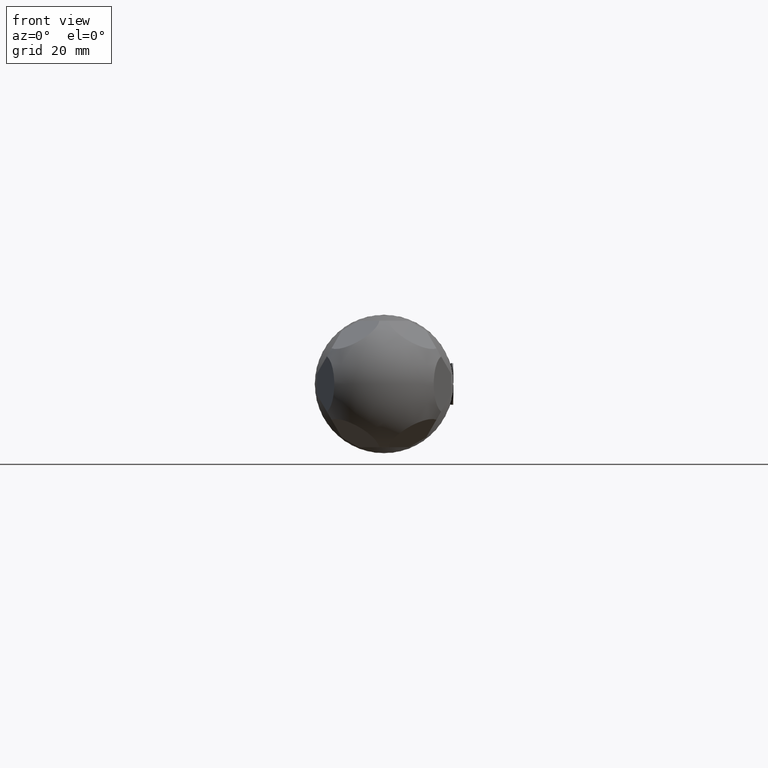
[diagram: clean part render]
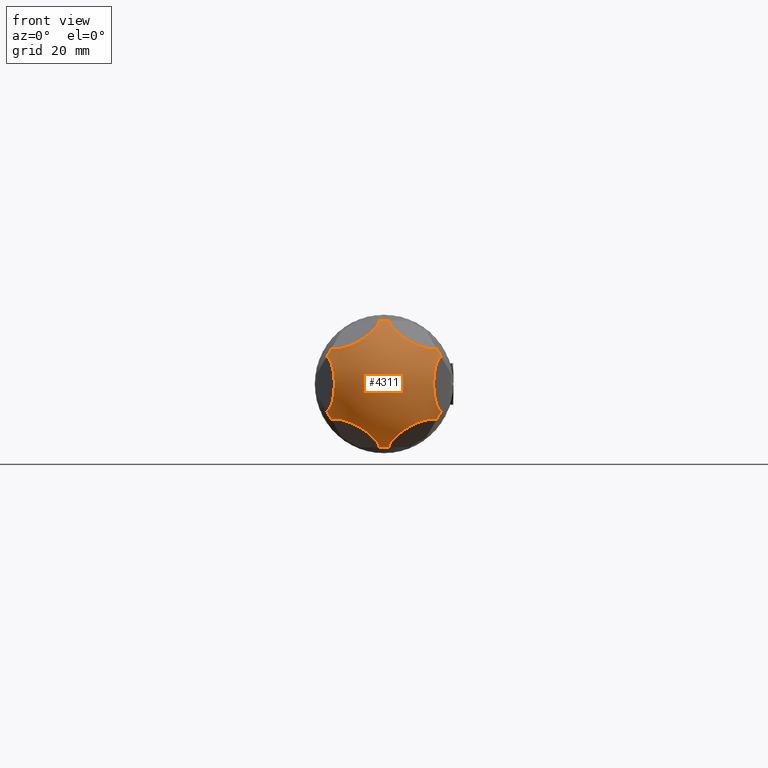
[diagram: same view with one face highlighted and labeled with its STEP entity id]
A machine part, front view. The second image highlights one B-rep face of the part: STEP entity #4311.
In plain terms, the highlighted spherical surface has radius 12 mm.
Its self-contained STEP definition (entity closure, byte-faithful):
#37 = DIRECTION ( 'NONE',  ( -0.000000000000000000, 0.000000000000000000, 1.000000000000000000 ) ) ;
#129 = EDGE_CURVE ( 'NONE', #2714, #7764, #12880, .T. ) ;
#168 = CIRCLE ( 'NONE', #6032, 4.908920451586054945 ) ;
#438 = DIRECTION ( 'NONE',  ( -0.4698463103929521045, -0.3420201433256697121, -0.8137976813493744688 ) ) ;
#469 = DIRECTION ( 'NONE',  ( 0.8660254037844345998, 5.854827030937196993E-32, 0.5000000000000072164 ) ) ;
#605 = CIRCLE ( 'NONE', #606, 4.908920451586069156 ) ;
#606 = AXIS2_PLACEMENT_3D ( 'NONE', #1268, #3320, #10364 ) ;
#837 = DIRECTION ( 'NONE',  ( 0.8660254037844361541, -1.413527469500000806E-15, 0.5000000000000044409 ) ) ;
#855 = CARTESIAN_POINT ( 'NONE',  ( -1.160987972426142227E-13, 48.00000000000000000, 10.95000000000000639 ) ) ;
#873 = EDGE_CURVE ( 'NONE', #8479, #7764, #11291, .T. ) ;
#1018 = VERTEX_POINT ( 'NONE', #2615 ) ;
#1079 = DIRECTION ( 'NONE',  ( -0.8660254037844417052, -0.000000000000000000, 0.4999999999999948930 ) ) ;
#1268 = CARTESIAN_POINT ( 'NONE',  ( -5.144817098802763944, 51.74512056941608051, -8.911084610775686699 ) ) ;
#1427 = DIRECTION ( 'NONE',  ( -0.8660254037844331565, 1.413527469499994692E-15, -0.5000000000000093259 ) ) ;
#1460 = DIRECTION ( 'NONE',  ( -0.4698463103929634843, -0.3420201433256697121, 0.8137976813493679185 ) ) ;
#1824 = CARTESIAN_POINT ( 'NONE',  ( 9.482978171439642168, 48.00000000000000000, -5.474999999999963229 ) ) ;
#1851 = DIRECTION ( 'NONE',  ( 0.9396926207859082059, -0.3420201433256697676, -0.000000000000000000 ) ) ;
#1891 = CARTESIAN_POINT ( 'NONE',  ( -5.144817098802890953, 51.74512056941608762, 8.911084610775620973 ) ) ;
#1899 = ORIENTED_EDGE ( 'NONE', *, *, #10801, .F. ) ;
#2050 = CIRCLE ( 'NONE', #12509, 4.908920451586070044 ) ;
#2053 = CARTESIAN_POINT ( 'NONE',  ( -9.482978171439521375, 48.00000000000000000, -5.475000000000162181 ) ) ;
#2216 = EDGE_LOOP ( 'NONE', ( #3951, #9920, #1899, #11647, #7811, #5428, #3180, #3108, #6496, #3953, #8324, #11458 ) ) ;
#2615 = CARTESIAN_POINT ( 'NONE',  ( -0.8158296189273389620, 52.84065305851193273, 10.94999999999999751 ) ) ;
#2714 = VERTEX_POINT ( 'NONE', #12882 ) ;
#2811 = CARTESIAN_POINT ( 'NONE',  ( -9.890892980903240428, 52.84065305851193273, 4.768470824849190493 ) ) ;
#2824 = DIRECTION ( 'NONE',  ( 0.4999999999999949485, 0.000000000000000000, 0.8660254037844415942 ) ) ;
#2825 = AXIS2_PLACEMENT_3D ( 'NONE', #5576, #469, #12710 ) ;
#3108 = ORIENTED_EDGE ( 'NONE', *, *, #12195, .T. ) ;
#3176 = CARTESIAN_POINT ( 'NONE',  ( -9.482978171439642168, 48.00000000000000000, 5.474999999999930367 ) ) ;
#3180 = ORIENTED_EDGE ( 'NONE', *, *, #3547, .F. ) ;
#3320 = DIRECTION ( 'NONE',  ( 0.4698463103929465534, -0.3420201433256697676, 0.8137976813493779105 ) ) ;
#3385 = AXIS2_PLACEMENT_3D ( 'NONE', #855, #12047, #10088 ) ;
#3405 = AXIS2_PLACEMENT_3D ( 'NONE', #3176, #1079, #12312 ) ;
#3547 = EDGE_CURVE ( 'NONE', #8722, #9438, #13161, .T. ) ;
#3749 = EDGE_CURVE ( 'NONE', #3990, #1018, #10746, .T. ) ;
#3951 = ORIENTED_EDGE ( 'NONE', *, *, #129, .F. ) ;
#3953 = ORIENTED_EDGE ( 'NONE', *, *, #3749, .T. ) ;
#3990 = VERTEX_POINT ( 'NONE', #5306 ) ;
#4311 = ADVANCED_FACE ( 'NONE', ( #10160 ), #6341, .T. ) ;
#4579 = EDGE_CURVE ( 'NONE', #10479, #10362, #2050, .T. ) ;
#4730 = AXIS2_PLACEMENT_3D ( 'NONE', #7911, #37, #7245 ) ;
#4789 = CARTESIAN_POINT ( 'NONE',  ( 0.8158296189273966936, 52.84065305851194694, -10.94999999999998685 ) ) ;
#4866 = CIRCLE ( 'NONE', #6566, 4.908920451586067379 ) ;
#4899 = DIRECTION ( 'NONE',  ( 0.8660254037844417052, -0.000000000000000000, -0.4999999999999948930 ) ) ;
#4911 = CARTESIAN_POINT ( 'NONE',  ( -0.8158296189271683208, 52.84065305851191852, -10.95000000000001350 ) ) ;
#5077 = CARTESIAN_POINT ( 'NONE',  ( -9.890892980903251086, 52.84065305851190431, -4.768470824849226908 ) ) ;
#5163 = CARTESIAN_POINT ( 'NONE',  ( 9.075063361976036802, 52.84065305851193983, -6.181529175150703104 ) ) ;
#5306 = CARTESIAN_POINT ( 'NONE',  ( -9.075063361975994169, 52.84065305851191852, 6.181529175150755506 ) ) ;
#5428 = ORIENTED_EDGE ( 'NONE', *, *, #7001, .T. ) ;
#5461 = EDGE_CURVE ( 'NONE', #3990, #8491, #11732, .T. ) ;
#5525 = EDGE_CURVE ( 'NONE', #6542, #10362, #5821, .T. ) ;
#5576 = CARTESIAN_POINT ( 'NONE',  ( 9.482978171439562232, 48.00000000000000000, 5.475000000000063594 ) ) ;
#5593 = CARTESIAN_POINT ( 'NONE',  ( 9.890892980903240428, 52.84065305851193273, -4.768470824849223355 ) ) ;
#5821 = CIRCLE ( 'NONE', #12297, 4.908920451586066491 ) ;
#5867 = DIRECTION ( 'NONE',  ( -0.3420201433256695456, 0.9396926207859080948, -3.552713678800500140E-15 ) ) ;
#5932 = EDGE_CURVE ( 'NONE', #2714, #6313, #4866, .T. ) ;
#5958 = CARTESIAN_POINT ( 'NONE',  ( -10.28963419760569487, 51.74512056941608051, 1.434817808568490711E-29 ) ) ;
#6032 = AXIS2_PLACEMENT_3D ( 'NONE', #1824, #4899, #2824 ) ;
#6313 = VERTEX_POINT ( 'NONE', #5593 ) ;
#6341 = SPHERICAL_SURFACE ( 'NONE', #4730, 11.99999999999999822 ) ;
#6487 = CARTESIAN_POINT ( 'NONE',  ( 5.144817098802826116, 51.74512056941608051, 8.911084610775651171 ) ) ;
#6496 = ORIENTED_EDGE ( 'NONE', *, *, #5461, .F. ) ;
#6542 = VERTEX_POINT ( 'NONE', #4911 ) ;
#6566 = AXIS2_PLACEMENT_3D ( 'NONE', #10960, #11002, #5867 ) ;
#7001 = EDGE_CURVE ( 'NONE', #6542, #9438, #605, .T. ) ;
#7245 = DIRECTION ( 'NONE',  ( 1.000000000000000000, 0.000000000000000000, 0.000000000000000000 ) ) ;
#7764 = VERTEX_POINT ( 'NONE', #8489 ) ;
#7811 = ORIENTED_EDGE ( 'NONE', *, *, #5525, .F. ) ;
#7911 = CARTESIAN_POINT ( 'NONE',  ( -3.250081887472109906E-45, 48.00000000000000000, 9.629649721936179265E-32 ) ) ;
#8219 = AXIS2_PLACEMENT_3D ( 'NONE', #6487, #438, #8533 ) ;
#8249 = CARTESIAN_POINT ( 'NONE',  ( 1.932953797023628997E-13, 48.00000000000000000, -10.95000000000000107 ) ) ;
#8324 = ORIENTED_EDGE ( 'NONE', *, *, #9211, .F. ) ;
#8479 = VERTEX_POINT ( 'NONE', #9901 ) ;
#8489 = CARTESIAN_POINT ( 'NONE',  ( 9.075063361975949761, 52.84065305851193983, 6.181529175150800803 ) ) ;
#8491 = VERTEX_POINT ( 'NONE', #2811 ) ;
#8533 = DIRECTION ( 'NONE',  ( 0.8660254037844394848, 1.413527469499995876E-15, -0.4999999999999984457 ) ) ;
#8722 = VERTEX_POINT ( 'NONE', #5077 ) ;
#8942 = DIRECTION ( 'NONE',  ( -0.3420201433256695456, -0.9396926207859080948, -8.881784197001250351E-16 ) ) ;
#9137 = DIRECTION ( 'NONE',  ( 1.000000000000000000, -5.654109877999982713E-15, 1.766909336874994529E-14 ) ) ;
#9211 = EDGE_CURVE ( 'NONE', #8479, #1018, #11873, .T. ) ;
#9275 = DIRECTION ( 'NONE',  ( 1.765254609153998899E-14, -0.000000000000000000, -1.000000000000000000 ) ) ;
#9438 = VERTEX_POINT ( 'NONE', #10389 ) ;
#9901 = CARTESIAN_POINT ( 'NONE',  ( 0.8158296189272468135, 52.84065305851191141, 10.95000000000001172 ) ) ;
#9920 = ORIENTED_EDGE ( 'NONE', *, *, #5932, .T. ) ;
#9937 = DIRECTION ( 'NONE',  ( 0.4698463103929578777, -0.3420201433256697121, -0.8137976813493713601 ) ) ;
#10088 = DIRECTION ( 'NONE',  ( -1.000000000000000000, 0.000000000000000000, -1.060145602124999431E-14 ) ) ;
#10104 = DIRECTION ( 'NONE',  ( -0.8660254037844310471, -5.854827030937196993E-32, -0.5000000000000132117 ) ) ;
#10143 = DIRECTION ( 'NONE',  ( 0.5000000000000131006, -4.240582408499989204E-15, -0.8660254037844309360 ) ) ;
#10160 = FACE_OUTER_BOUND ( 'NONE', #2216, .T. ) ;
#10362 = VERTEX_POINT ( 'NONE', #4789 ) ;
#10364 = DIRECTION ( 'NONE',  ( -0.8660254037844435926, -1.413527469499994889E-15, 0.4999999999999913958 ) ) ;
#10389 = CARTESIAN_POINT ( 'NONE',  ( -9.075063361975908904, 52.84065305851193983, -6.181529175150894062 ) ) ;
#10479 = VERTEX_POINT ( 'NONE', #5163 ) ;
#10520 = AXIS2_PLACEMENT_3D ( 'NONE', #2053, #10104, #10143 ) ;
#10746 = CIRCLE ( 'NONE', #13008, 4.908920451586048728 ) ;
#10801 = EDGE_CURVE ( 'NONE', #10479, #6313, #168, .T. ) ;
#10960 = CARTESIAN_POINT ( 'NONE',  ( 10.28963419760569487, 51.74512056941608051, 9.629649721936179265E-32 ) ) ;
#11002 = DIRECTION ( 'NONE',  ( -0.9396926207859082059, -0.3420201433256697676, -0.000000000000000000 ) ) ;
#11291 = CIRCLE ( 'NONE', #8219, 4.908920451586065603 ) ;
#11458 = ORIENTED_EDGE ( 'NONE', *, *, #873, .T. ) ;
#11647 = ORIENTED_EDGE ( 'NONE', *, *, #4579, .T. ) ;
#11732 = CIRCLE ( 'NONE', #3405, 4.908920451586054945 ) ;
#11873 = CIRCLE ( 'NONE', #3385, 4.908920451586054057 ) ;
#12047 = DIRECTION ( 'NONE',  ( -1.060262988517024338E-14, -0.000000000000000000, 1.000000000000000000 ) ) ;
#12195 = EDGE_CURVE ( 'NONE', #8722, #8491, #12389, .T. ) ;
#12297 = AXIS2_PLACEMENT_3D ( 'NONE', #8249, #9275, #9137 ) ;
#12312 = DIRECTION ( 'NONE',  ( -0.4999999999999949485, -5.654109877999996124E-15, -0.8660254037844415942 ) ) ;
#12389 = CIRCLE ( 'NONE', #12542, 4.908920451586067379 ) ;
#12509 = AXIS2_PLACEMENT_3D ( 'NONE', #12623, #1460, #1427 ) ;
#12542 = AXIS2_PLACEMENT_3D ( 'NONE', #5958, #1851, #8942 ) ;
#12623 = CARTESIAN_POINT ( 'NONE',  ( 5.144817098802950461, 51.74512056941608051, -8.911084610775578341 ) ) ;
#12710 = DIRECTION ( 'NONE',  ( -0.5000000000000072164, -4.240582408499993149E-15, 0.8660254037844344888 ) ) ;
#12880 = CIRCLE ( 'NONE', #2825, 4.908920451586059386 ) ;
#12882 = CARTESIAN_POINT ( 'NONE',  ( 9.890892980903249310, 52.84065305851190431, 4.768470824849194045 ) ) ;
#13008 = AXIS2_PLACEMENT_3D ( 'NONE', #1891, #9937, #837 ) ;
#13161 = CIRCLE ( 'NONE', #10520, 4.908920451586063827 ) ;